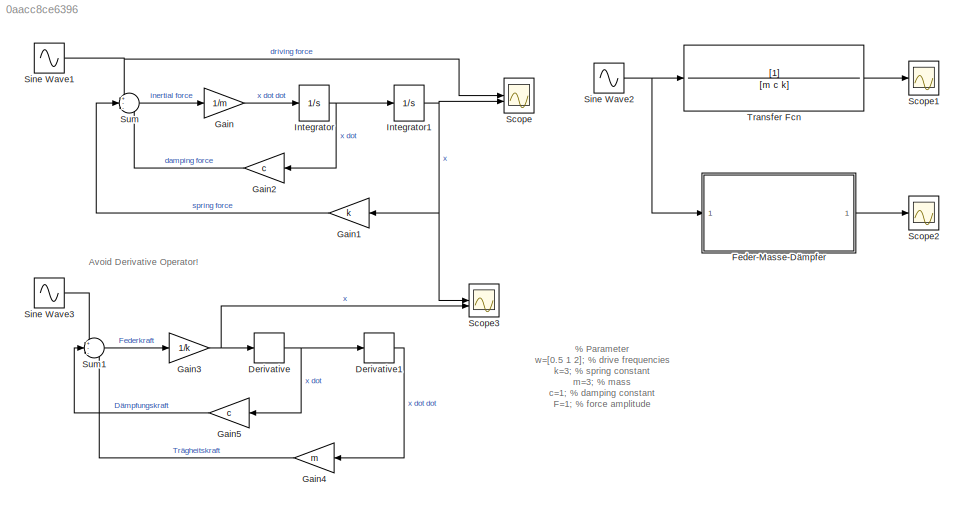
MODEL slx_0aacc8ce6396
KIND model
CONFIG AbsTol = auto
CONFIG EnableMultiTasking = off
CONFIG FixedStep = auto
CONFIG MaxStep = auto
CONFIG MinStep = auto
CONFIG RelTol = 1e-3
CONFIG SampleTimeConstraint = Unconstrained
CONFIG SolverName = VariableStepAuto
CONFIG StartTime = 0.0
CONFIG StopTime = te
BLOCK [Derivative] Derivative
BLOCK [Derivative] Derivative1
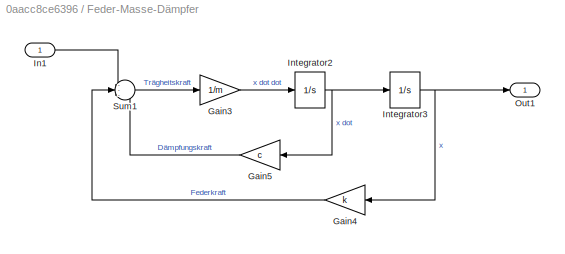
BLOCK [SubSystem] Feder-Masse-Dämpfer
BLOCK [Gain] Feder-Masse-Dämpfer/Gain3
  Gain = 1/m
BLOCK [Gain] Feder-Masse-Dämpfer/Gain4
  Gain = k
  NameLocation = top
BLOCK [Gain] Feder-Masse-Dämpfer/Gain5
  Gain = c
  NameLocation = top
BLOCK [Inport] Feder-Masse-Dämpfer/In1
BLOCK [Integrator] Feder-Masse-Dämpfer/Integrator2
BLOCK [Integrator] Feder-Masse-Dämpfer/Integrator3
BLOCK [Outport] Feder-Masse-Dämpfer/Out1
  VectorParamsAs1DForOutWhenUnconnected = off
BLOCK [Sum] Feder-Masse-Dämpfer/Sum1
  Inputs = ---
BLOCK [Gain] Gain
  Gain = 1/m
BLOCK [Gain] Gain1
  Gain = k
  NameLocation = top
BLOCK [Gain] Gain2
  Gain = c
  NameLocation = top
BLOCK [Gain] Gain3
  Gain = 1/k
BLOCK [Gain] Gain4
  Gain = m
  NameLocation = top
BLOCK [Gain] Gain5
  Gain = c
  NameLocation = top
BLOCK [Integrator] Integrator
BLOCK [Integrator] Integrator1
BLOCK [Scope] Scope
  Floating = off
  NumInputPorts = 2
  ScopeSpecificationString = Simulink.scopes.TimeScopeBlockCfg('CurrentConfiguration', extmgr.ConfigurationSet(extmgr.Configuration('Core','General UI',true),extmgr.Configuration('Core','Source UI',true),extmgr.Configuration('Sources','WiredSimulink',true,'DataLogging',true),extmgr.Configuration('Visuals','Time Domain',true,'SerializedDisplays',{struct('MinYLimReal','-1.24999','MaxYLimReal','1.24998','YLabelReal','','MinYLimM...<+1992ch>
BLOCK [Scope] Scope1
  Floating = off
  NumInputPorts = 1
  ScopeSpecificationString = Simulink.scopes.TimeScopeBlockCfg('CurrentConfiguration', extmgr.ConfigurationSet(extmgr.Configuration('Core','General UI',true),extmgr.Configuration('Core','Source UI',true),extmgr.Configuration('Sources','WiredSimulink',true,'DataLoggingVariableName','ScopeData2','DataLoggingLimitDataPoints',true,'DataLoggingSaveFormat','Array','DataLoggingDecimation','1','DataLoggingDecimateData',true),extmgr.C...<+1672ch>
BLOCK [Scope] Scope2
  Floating = off
  NumInputPorts = 1
  ScopeSpecificationString = Simulink.scopes.TimeScopeBlockCfg('CurrentConfiguration', extmgr.ConfigurationSet(extmgr.Configuration('Core','General UI',true),extmgr.Configuration('Core','Source UI',true),extmgr.Configuration('Sources','WiredSimulink',true,'DataLoggingVariableName','ScopeData3','DataLoggingLimitDataPoints',true,'DataLoggingSaveFormat','Array','DataLoggingDecimation','1','DataLoggingDecimateData',true),extmgr.C...<+1679ch>
BLOCK [Scope] Scope3
  Floating = off
  NumInputPorts = 2
  ScopeSpecificationString = Simulink.scopes.TimeScopeBlockCfg('CurrentConfiguration', extmgr.ConfigurationSet(extmgr.Configuration('Core','General UI',true),extmgr.Configuration('Core','Source UI',true),extmgr.Configuration('Sources','WiredSimulink',true,'DataLoggingSaveFormat','Structure'),extmgr.Configuration('Visuals','Time Domain',true,'SerializedDisplays',{struct('MinYLimReal','-1.24292','MaxYLimReal','1.24024','YLabelR...<+2001ch>
BLOCK [Sin] Sine Wave1
  Amplitude = F
  Frequency = w
  SampleTime = 0
BLOCK [Sin] Sine Wave2
  Amplitude = F
  Frequency = w(2)
  SampleTime = 0
BLOCK [Sin] Sine Wave3
  Amplitude = F
  Frequency = w
  SampleTime = 0
BLOCK [Sum] Sum
  Inputs = +--
BLOCK [Sum] Sum1
  Inputs = +--
BLOCK [TransferFcn] Transfer Fcn
  Denominator = [m c k]
ANNOTATION (root): % Parameter w=[0.5 1 2]; % drive frequencies k=3; % spring constant m=3; % mass c=1; % damping constant F=1; % force amplitude te=50; % simulation time x0=[0 0]; % initial conditions x(1)=x(t) and x(2)=x'(t)
ANNOTATION (root): Avoid Derivative Operator!
LINE Derivative1:1 -> Gain4:1
NET Derivative:1 -> Derivative1:1, Gain5:1
LINE Feder-Masse-Dämpfer/Gain3:1 -> Feder-Masse-Dämpfer/Integrator2:1
LINE Feder-Masse-Dämpfer/Gain4:1 -> Feder-Masse-Dämpfer/Sum1:2
LINE Feder-Masse-Dämpfer/Gain5:1 -> Feder-Masse-Dämpfer/Sum1:3
LINE Feder-Masse-Dämpfer/In1:1 -> Feder-Masse-Dämpfer/Sum1:1
NET Feder-Masse-Dämpfer/Integrator2:1 -> Feder-Masse-Dämpfer/Gain5:1, Feder-Masse-Dämpfer/Integrator3:1
NET Feder-Masse-Dämpfer/Integrator3:1 -> Feder-Masse-Dämpfer/Gain4:1, Feder-Masse-Dämpfer/Out1:1
LINE Feder-Masse-Dämpfer/Sum1:1 -> Feder-Masse-Dämpfer/Gain3:1
LINE Feder-Masse-Dämpfer:1 -> Scope2:1
LINE Gain1:1 -> Sum:2
LINE Gain2:1 -> Sum:3
NET Gain3:1 -> Derivative:1, Scope3:2
LINE Gain4:1 -> Sum1:3
LINE Gain5:1 -> Sum1:2
LINE Gain:1 -> Integrator:1
NET Integrator1:1 -> Gain1:1, Scope3:1, Scope:2
NET Integrator:1 -> Gain2:1, Integrator1:1
NET Sine Wave1:1 -> Scope:1, Sum:1
NET Sine Wave2:1 -> Feder-Masse-Dämpfer:1, Transfer Fcn:1
LINE Sine Wave3:1 -> Sum1:1
LINE Sum1:1 -> Gain3:1
LINE Sum:1 -> Gain:1
LINE Transfer Fcn:1 -> Scope1:1
note: NET lines group one-source signal fan-out (src -> all destinations, sorted); 1:1 wires keep LINE
